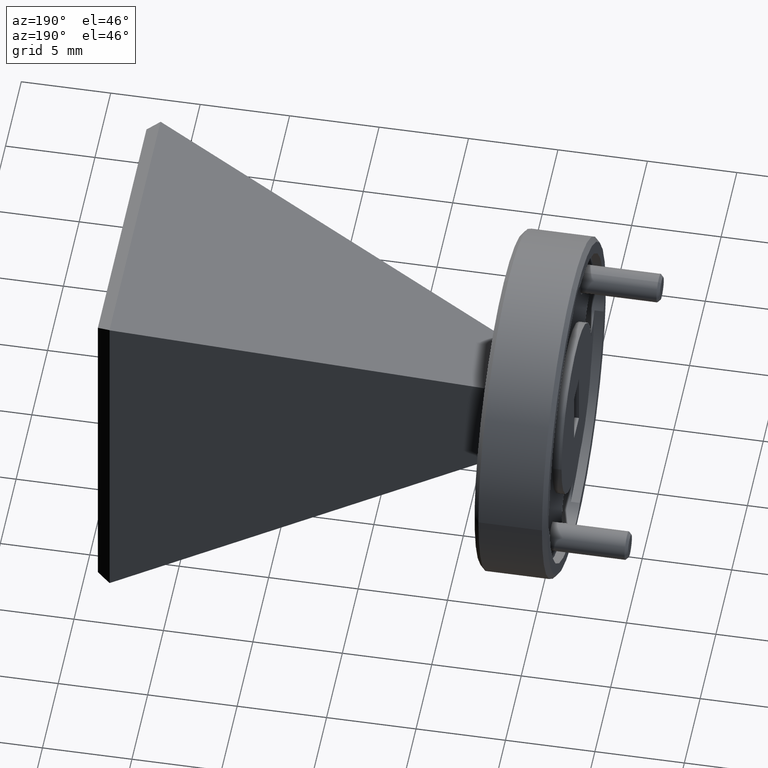
[diagram: clean part render]
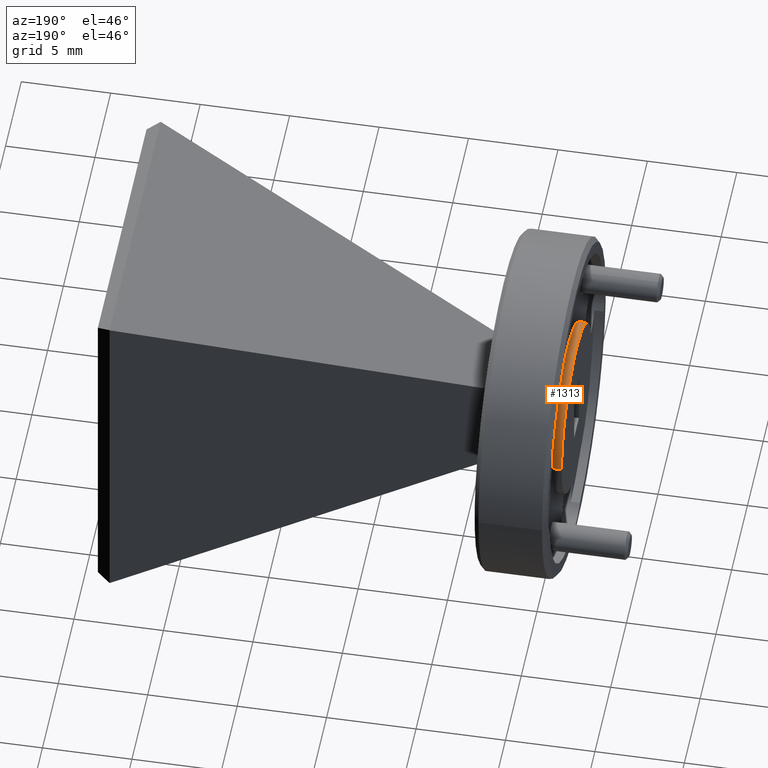
[diagram: same view with one face highlighted and labeled with its STEP entity id]
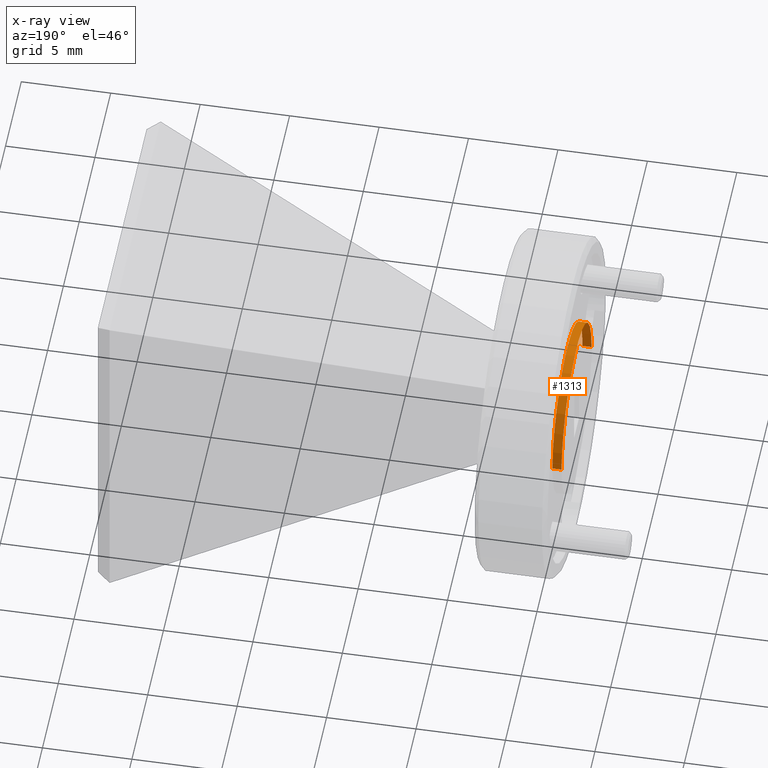
[diagram: x-ray of the same camera — body ghosted, the highlighted face saturated]
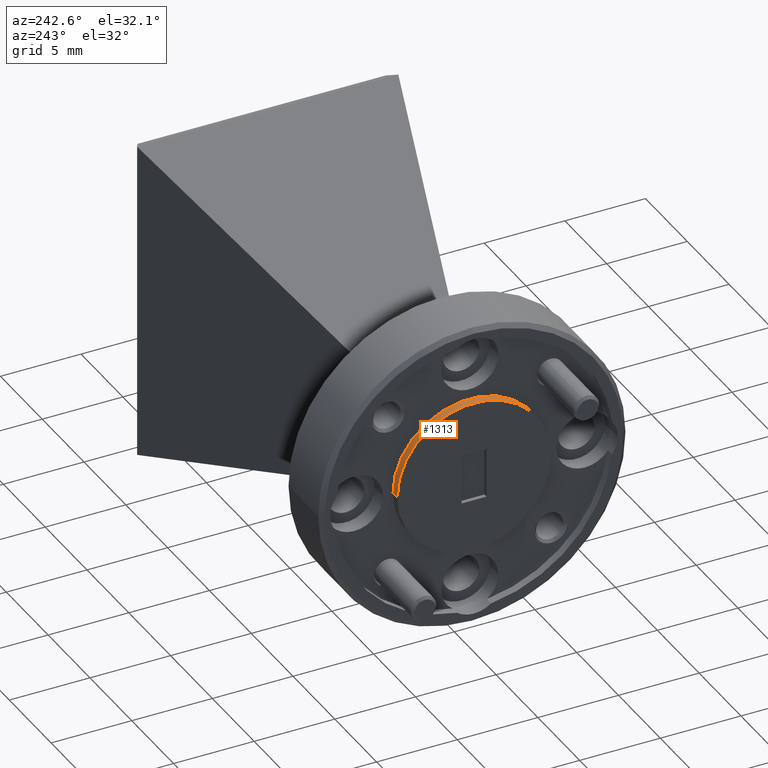
[diagram: same view with one face highlighted and labeled with its STEP entity id]
A machine part, auxiliary view. The second image highlights one B-rep face of the part: STEP entity #1313.
The next image is the same camera in x-ray: the body ghosted, the highlighted face saturated — about 0% of this face is hidden behind the body in this view.
A second angle (auxiliary view) of the same face is appended — the face is thin or edge-on in the first view.
In plain terms, the highlighted cylindrical surface (partial cylindrical patch) has radius 4.7625 mm, axis along (1, 0, -0).
Its self-contained STEP definition (entity closure, byte-faithful):
#142 = CARTESIAN_POINT ( 'NONE',  ( -2.193673718292400210, -0.01363140548392749278, 0.7861574694021060683 ) ) ;
#191 = EDGE_CURVE ( 'NONE', #1764, #1444, #422, .T. ) ;
#211 = CARTESIAN_POINT ( 'NONE',  ( -2.193673718292400210, 0.1738685945160724500, 0.7861574694021060683 ) ) ;
#231 = CARTESIAN_POINT ( 'NONE',  ( -2.053673718292400530, -0.01363140548392738870, 0.7861574694021060683 ) ) ;
#245 = AXIS2_PLACEMENT_3D ( 'NONE', #2528, #693, #1302 ) ;
#294 = CYLINDRICAL_SURFACE ( 'NONE', #1400, 0.1874999999999999722 ) ;
#301 = EDGE_LOOP ( 'NONE', ( #604, #1429, #1571, #1390 ) ) ;
#379 = AXIS2_PLACEMENT_3D ( 'NONE', #211, #1038, #2301 ) ;
#422 = CIRCLE ( 'NONE', #379, 0.1874999999999999722 ) ;
#462 = CIRCLE ( 'NONE', #245, 0.1874999999999999722 ) ;
#498 = CARTESIAN_POINT ( 'NONE',  ( -2.213673718292400672, 0.3613685945160724500, 0.7861574694021060683 ) ) ;
#509 = DIRECTION ( 'NONE',  ( -1.456985596620940580E-15, 1.000000000000000000, 0.000000000000000000 ) ) ;
#593 = DIRECTION ( 'NONE',  ( 1.000000000000000000, 8.537024980200824776E-16, -0.000000000000000000 ) ) ;
#604 = ORIENTED_EDGE ( 'NONE', *, *, #1272, .T. ) ;
#636 = DIRECTION ( 'NONE',  ( 1.000000000000000000, 8.537024980200824776E-16, -0.000000000000000000 ) ) ;
#667 = CARTESIAN_POINT ( 'NONE',  ( -2.193673718292400654, 0.3613685945160724500, 0.7861574694021060683 ) ) ;
#693 = DIRECTION ( 'NONE',  ( 1.000000000000000000, 8.537024980200825762E-16, -0.000000000000000000 ) ) ;
#872 = DIRECTION ( 'NONE',  ( 1.000000000000000000, 8.537024980200825762E-16, -0.000000000000000000 ) ) ;
#927 = VERTEX_POINT ( 'NONE', #1315 ) ;
#1038 = DIRECTION ( 'NONE',  ( 1.000000000000000000, 8.537024980200825762E-16, -0.000000000000000000 ) ) ;
#1113 = CARTESIAN_POINT ( 'NONE',  ( -2.053673718292400530, 0.1738685945160725888, 0.7861574694021060683 ) ) ;
#1272 = EDGE_CURVE ( 'NONE', #2598, #927, #462, .T. ) ;
#1302 = DIRECTION ( 'NONE',  ( -1.456985596620940580E-15, 1.000000000000000000, 0.000000000000000000 ) ) ;
#1313 = ADVANCED_FACE ( 'NONE', ( #1893 ), #294, .T. ) ;
#1315 = CARTESIAN_POINT ( 'NONE',  ( -2.213673718292400228, -0.01363140548392752574, 0.7861574694021060683 ) ) ;
#1390 = ORIENTED_EDGE ( 'NONE', *, *, #1862, .F. ) ;
#1400 = AXIS2_PLACEMENT_3D ( 'NONE', #1113, #872, #509 ) ;
#1429 = ORIENTED_EDGE ( 'NONE', *, *, #1894, .T. ) ;
#1444 = VERTEX_POINT ( 'NONE', #142 ) ;
#1571 = ORIENTED_EDGE ( 'NONE', *, *, #191, .F. ) ;
#1727 = VECTOR ( 'NONE', #593, 39.37007874015748143 ) ;
#1764 = VERTEX_POINT ( 'NONE', #667 ) ;
#1862 = EDGE_CURVE ( 'NONE', #2598, #1764, #2482, .T. ) ;
#1893 = FACE_OUTER_BOUND ( 'NONE', #301, .T. ) ;
#1894 = EDGE_CURVE ( 'NONE', #927, #1444, #2030, .T. ) ;
#1901 = VECTOR ( 'NONE', #636, 39.37007874015748143 ) ;
#2030 = LINE ( 'NONE', #231, #1727 ) ;
#2301 = DIRECTION ( 'NONE',  ( -1.456985596620940580E-15, 1.000000000000000000, 0.000000000000000000 ) ) ;
#2469 = CARTESIAN_POINT ( 'NONE',  ( -2.053673718292400974, 0.3613685945160725610, 0.7861574694021060683 ) ) ;
#2482 = LINE ( 'NONE', #2469, #1901 ) ;
#2528 = CARTESIAN_POINT ( 'NONE',  ( -2.213673718292400228, 0.1738685945160724500, 0.7861574694021060683 ) ) ;
#2598 = VERTEX_POINT ( 'NONE', #498 ) ;